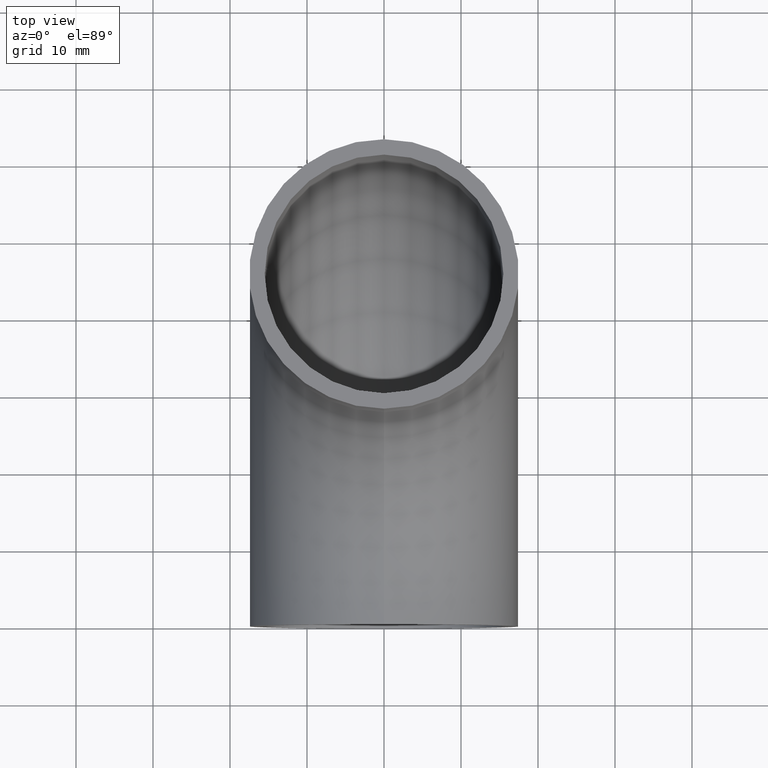
[diagram: clean part render]
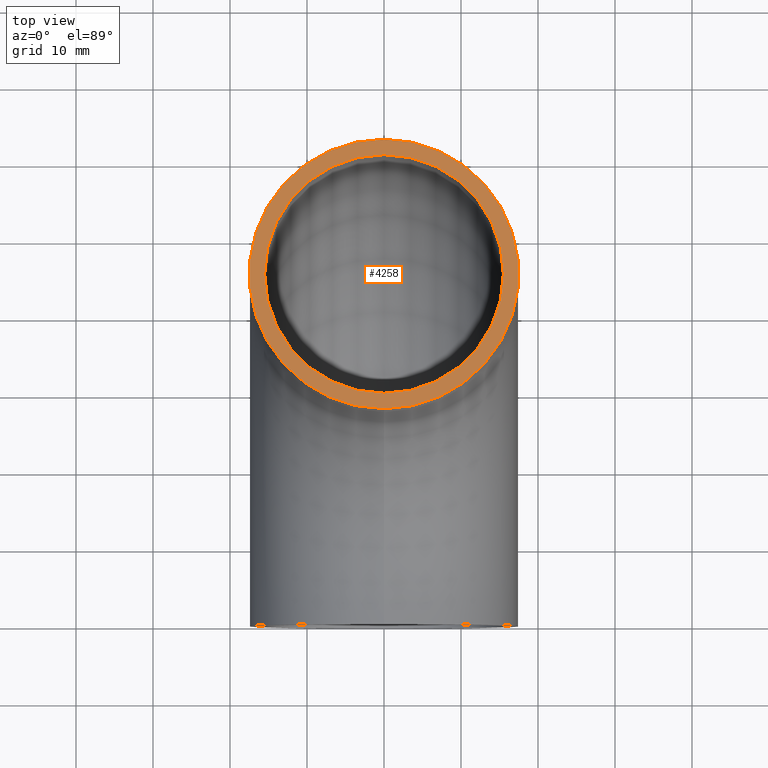
[diagram: same view with one face highlighted and labeled with its STEP entity id]
A machine part, top view. The second image highlights one B-rep face of the part: STEP entity #4258.
In plain terms, the highlighted planar face has unit normal (0, 0, 1).
Its self-contained STEP definition (entity closure, byte-faithful):
#46 = EDGE_CURVE ( 'NONE', #2306, #2306, #6416, .T. ) ;
#251 = EDGE_LOOP ( 'NONE', ( #409 ) ) ;
#260 = FACE_OUTER_BOUND ( 'NONE', #251, .T. ) ;
#409 = ORIENTED_EDGE ( 'NONE', *, *, #5111, .T. ) ;
#455 = DIRECTION ( 'NONE',  ( 0.000000000000000000, -1.000000000000000000, 6.123233995736766036E-17 ) ) ;
#1275 = AXIS2_PLACEMENT_3D ( 'NONE', #10243, #5079, #3620 ) ;
#1359 = CARTESIAN_POINT ( 'NONE',  ( 0.000000000000000000, 45.00000000000000000, -2.755455298081544778E-15 ) ) ;
#1676 = EDGE_LOOP ( 'NONE', ( #2975 ) ) ;
#2179 = DIRECTION ( 'NONE',  ( 0.000000000000000000, -1.000000000000000000, 6.123233995736767268E-17 ) ) ;
#2306 = VERTEX_POINT ( 'NONE', #10335 ) ;
#2975 = ORIENTED_EDGE ( 'NONE', *, *, #46, .F. ) ;
#3620 = DIRECTION ( 'NONE',  ( 0.000000000000000000, -1.000000000000000000, 6.123233995736766036E-17 ) ) ;
#3849 = DIRECTION ( 'NONE',  ( 0.000000000000000000, 6.123233995736766036E-17, 1.000000000000000000 ) ) ;
#4258 = ADVANCED_FACE ( 'NONE', ( #9272, #260 ), #6944, .T. ) ;
#4853 = CIRCLE ( 'NONE', #8064, 17.50000000000000000 ) ;
#5079 = DIRECTION ( 'NONE',  ( 0.000000000000000000, 6.123233995736766036E-17, 1.000000000000000000 ) ) ;
#5111 = EDGE_CURVE ( 'NONE', #5985, #5985, #4853, .T. ) ;
#5985 = VERTEX_POINT ( 'NONE', #6211 ) ;
#6211 = CARTESIAN_POINT ( 'NONE',  ( 0.000000000000000000, 27.49999999999999645, -1.683889348827610654E-15 ) ) ;
#6416 = CIRCLE ( 'NONE', #10773, 15.50000000000000000 ) ;
#6944 = PLANE ( 'NONE',  #1275 ) ;
#7177 = DIRECTION ( 'NONE',  ( 0.000000000000000000, 6.123233995736766036E-17, 1.000000000000000000 ) ) ;
#8064 = AXIS2_PLACEMENT_3D ( 'NONE', #8123, #3849, #455 ) ;
#8123 = CARTESIAN_POINT ( 'NONE',  ( 0.000000000000000000, 45.00000000000000000, -2.755455298081544778E-15 ) ) ;
#9272 = FACE_BOUND ( 'NONE', #1676, .T. ) ;
#10243 = CARTESIAN_POINT ( 'NONE',  ( 0.000000000000000000, 45.00000000000000000, -2.755455298081544778E-15 ) ) ;
#10335 = CARTESIAN_POINT ( 'NONE',  ( 0.000000000000000000, 29.50000000000000000, -1.806354028742345802E-15 ) ) ;
#10773 = AXIS2_PLACEMENT_3D ( 'NONE', #1359, #7177, #2179 ) ;